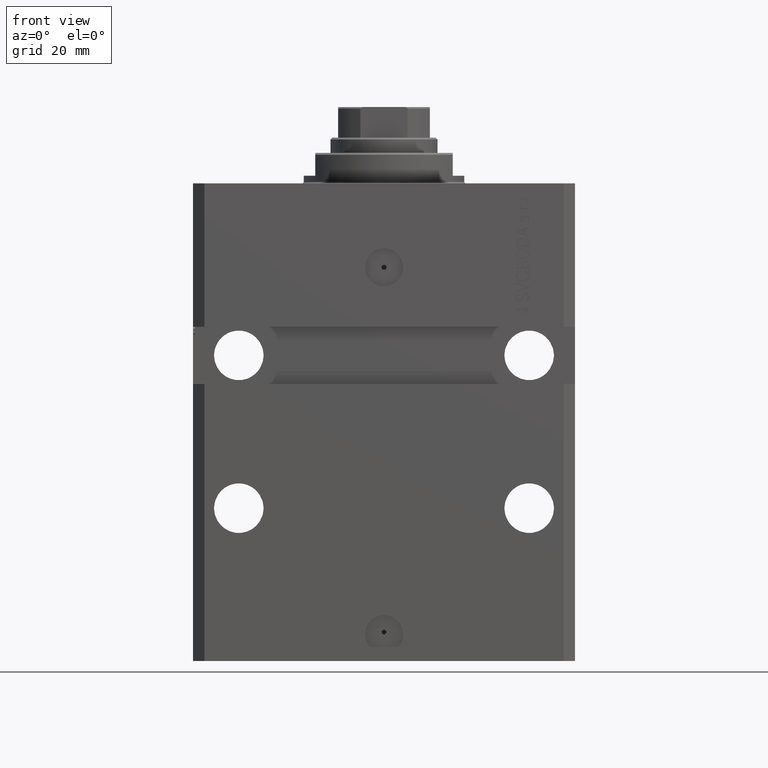
[diagram: clean part render]
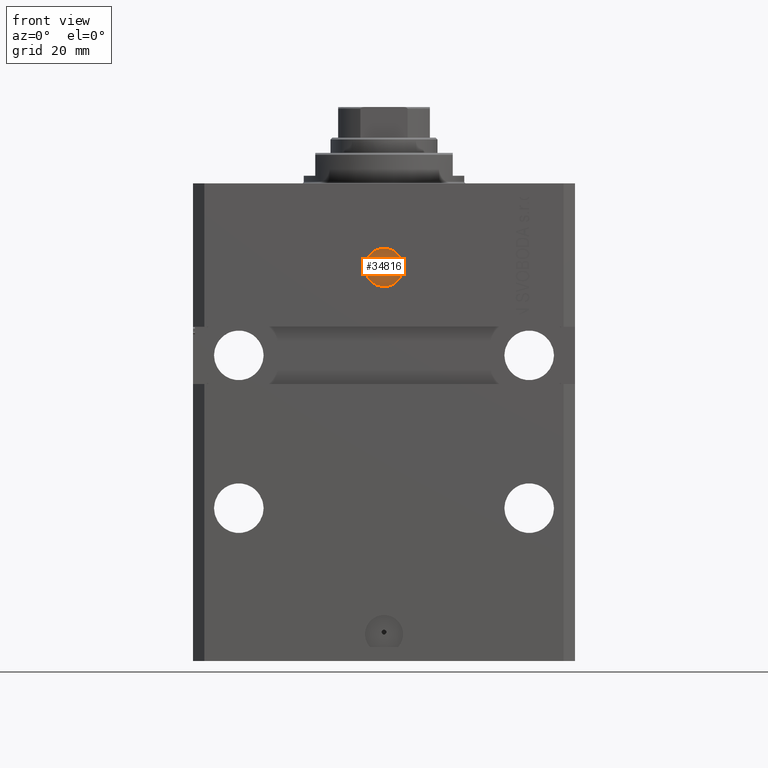
[diagram: same view with one face highlighted and labeled with its STEP entity id]
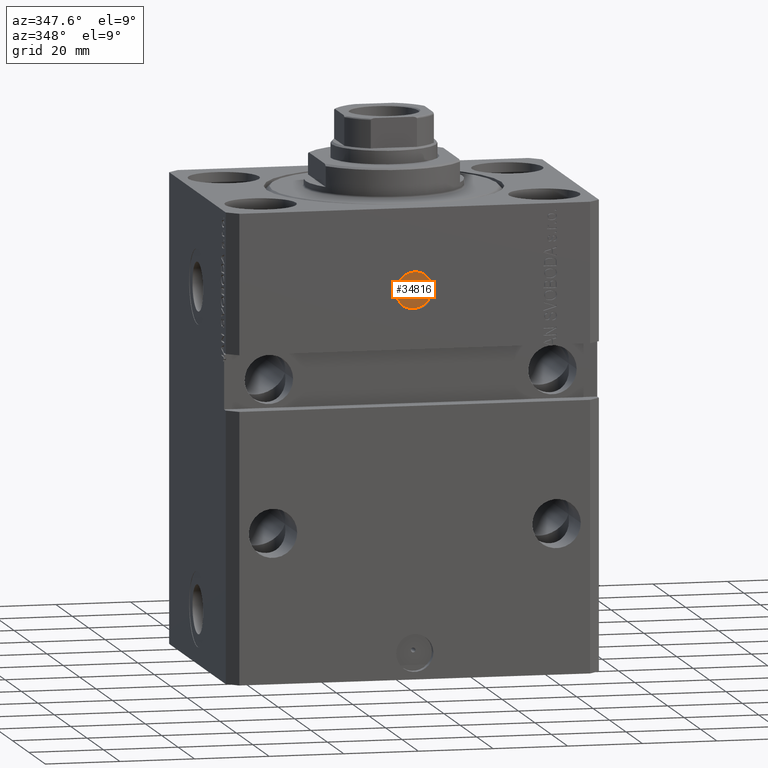
[diagram: same view with one face highlighted and labeled with its STEP entity id]
A machine part, front view. The second image highlights one B-rep face of the part: STEP entity #34816.
A second angle (auxiliary view) of the same face is appended — the face is thin or edge-on in the first view.
In plain terms, the highlighted planar face has unit normal (0, -1, 0).
Its self-contained STEP definition (entity closure, byte-faithful):
#910 = EDGE_CURVE ( 'NONE', #34869, #10671, #33176, .T. ) ;
#1417 = FACE_OUTER_BOUND ( 'NONE', #29443, .T. ) ;
#1529 = DIRECTION ( 'NONE',  ( 1.176083712526788232E-16, -1.000000000000000000, 0.000000000000000000 ) ) ;
#1640 = ORIENTED_EDGE ( 'NONE', *, *, #910, .F. ) ;
#2220 = EDGE_CURVE ( 'NONE', #10671, #34869, #42040, .T. ) ;
#2848 = DIRECTION ( 'NONE',  ( 1.000000000000000000, 0.000000000000000000, 0.000000000000000000 ) ) ;
#3382 = EDGE_CURVE ( 'NONE', #28692, #42837, #28144, .T. ) ;
#4309 = EDGE_CURVE ( 'NONE', #42837, #28692, #9049, .T. ) ;
#9049 = CIRCLE ( 'NONE', #11958, 5.000000000000002665 ) ;
#9182 = CARTESIAN_POINT ( 'NONE',  ( -5.759807424455006450E-15, -35.60000000000000142, -22.00000000000000000 ) ) ;
#9411 = DIRECTION ( 'NONE',  ( 1.176083712526788232E-16, -1.000000000000000000, 0.000000000000000000 ) ) ;
#10671 = VERTEX_POINT ( 'NONE', #16272 ) ;
#11958 = AXIS2_PLACEMENT_3D ( 'NONE', #30640, #34555, #2848 ) ;
#13682 = DIRECTION ( 'NONE',  ( 1.176083712526788232E-16, -1.000000000000000000, 0.000000000000000000 ) ) ;
#15402 = PLANE ( 'NONE',  #25465 ) ;
#16272 = CARTESIAN_POINT ( 'NONE',  ( 0.6250000000000044409, -35.60000000000000142, -22.00000000000000000 ) ) ;
#18840 = FACE_BOUND ( 'NONE', #38031, .T. ) ;
#20200 = DIRECTION ( 'NONE',  ( 1.000000000000000000, 1.176083712526788232E-16, 0.000000000000000000 ) ) ;
#20730 = AXIS2_PLACEMENT_3D ( 'NONE', #40560, #1529, #36224 ) ;
#21022 = CARTESIAN_POINT ( 'NONE',  ( 4.186858016595366184E-15, -35.60000000000000142, -22.00000000000000000 ) ) ;
#22742 = CARTESIAN_POINT ( 'NONE',  ( -5.000000000000008882, -35.60000000000000142, -22.00000000000000000 ) ) ;
#23719 = CARTESIAN_POINT ( 'NONE',  ( -5.759807424455006450E-15, -35.60000000000000142, -22.00000000000000000 ) ) ;
#24095 = CARTESIAN_POINT ( 'NONE',  ( 4.999999999999996447, -35.60000000000000142, -22.00000000000000000 ) ) ;
#24127 = ORIENTED_EDGE ( 'NONE', *, *, #2220, .F. ) ;
#25465 = AXIS2_PLACEMENT_3D ( 'NONE', #9182, #9411, #20200 ) ;
#27659 = DIRECTION ( 'NONE',  ( 1.176083712526788232E-16, -1.000000000000000000, 0.000000000000000000 ) ) ;
#28144 = CIRCLE ( 'NONE', #37634, 5.000000000000002665 ) ;
#28687 = ORIENTED_EDGE ( 'NONE', *, *, #4309, .T. ) ;
#28692 = VERTEX_POINT ( 'NONE', #22742 ) ;
#29443 = EDGE_LOOP ( 'NONE', ( #28687, #31611 ) ) ;
#30258 = AXIS2_PLACEMENT_3D ( 'NONE', #21022, #13682, #38061 ) ;
#30640 = CARTESIAN_POINT ( 'NONE',  ( -5.759807424455006450E-15, -35.60000000000000142, -22.00000000000000000 ) ) ;
#31324 = DIRECTION ( 'NONE',  ( 1.000000000000000000, 0.000000000000000000, 0.000000000000000000 ) ) ;
#31611 = ORIENTED_EDGE ( 'NONE', *, *, #3382, .T. ) ;
#33176 = CIRCLE ( 'NONE', #30258, 0.6250000000000002220 ) ;
#34555 = DIRECTION ( 'NONE',  ( 1.176083712526788232E-16, -1.000000000000000000, 0.000000000000000000 ) ) ;
#34816 = ADVANCED_FACE ( 'NONE', ( #18840, #1417 ), #15402, .T. ) ;
#34869 = VERTEX_POINT ( 'NONE', #36776 ) ;
#36224 = DIRECTION ( 'NONE',  ( 1.000000000000000000, 0.000000000000000000, 0.000000000000000000 ) ) ;
#36776 = CARTESIAN_POINT ( 'NONE',  ( -0.6249999999999960032, -35.60000000000000142, -22.00000000000000000 ) ) ;
#37634 = AXIS2_PLACEMENT_3D ( 'NONE', #23719, #27659, #31324 ) ;
#38031 = EDGE_LOOP ( 'NONE', ( #24127, #1640 ) ) ;
#38061 = DIRECTION ( 'NONE',  ( 1.000000000000000000, 0.000000000000000000, 0.000000000000000000 ) ) ;
#40560 = CARTESIAN_POINT ( 'NONE',  ( 4.186858016595366184E-15, -35.60000000000000142, -22.00000000000000000 ) ) ;
#42040 = CIRCLE ( 'NONE', #20730, 0.6250000000000002220 ) ;
#42837 = VERTEX_POINT ( 'NONE', #24095 ) ;